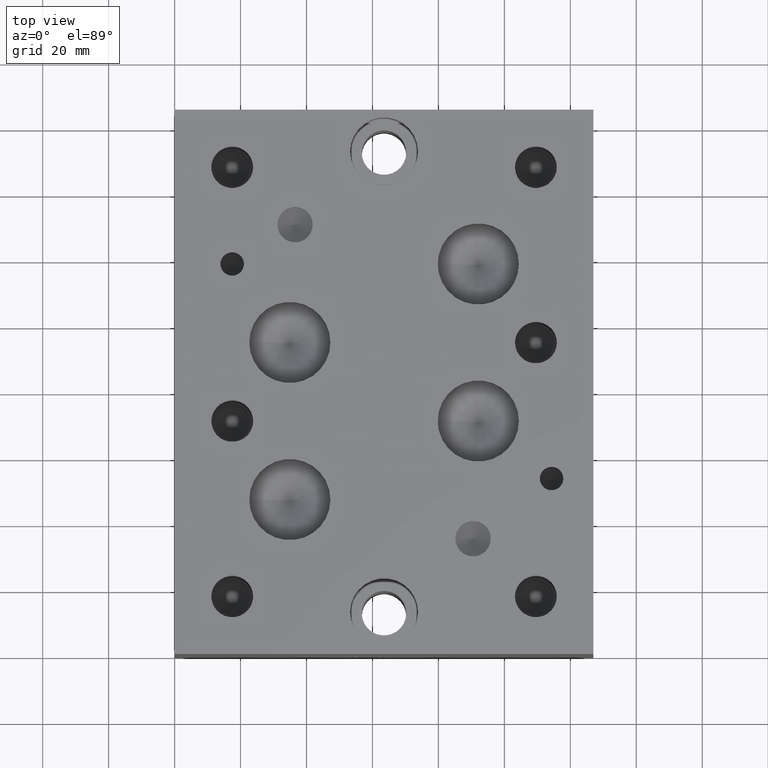
[diagram: clean part render]
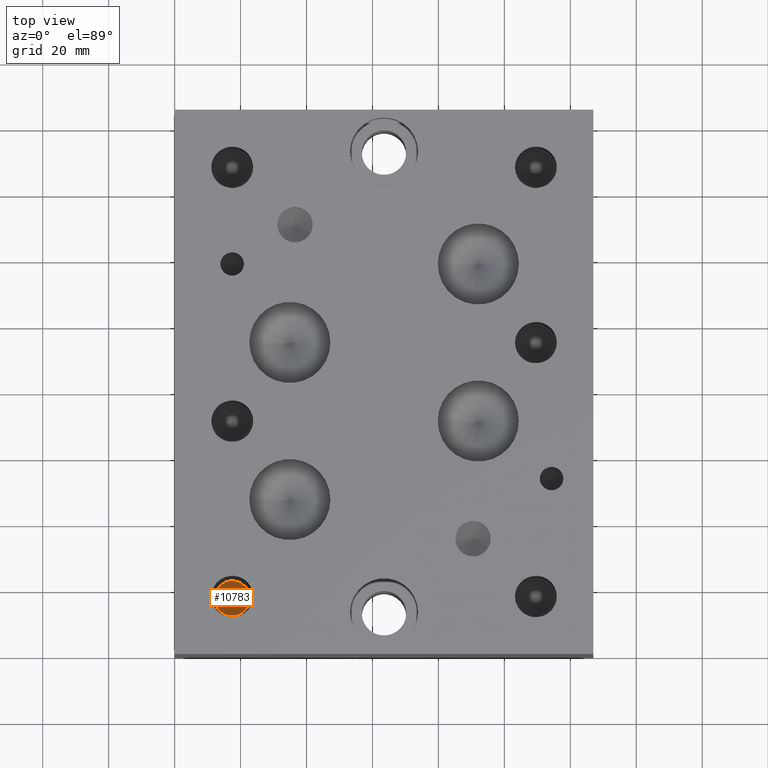
[diagram: same view with one face highlighted and labeled with its STEP entity id]
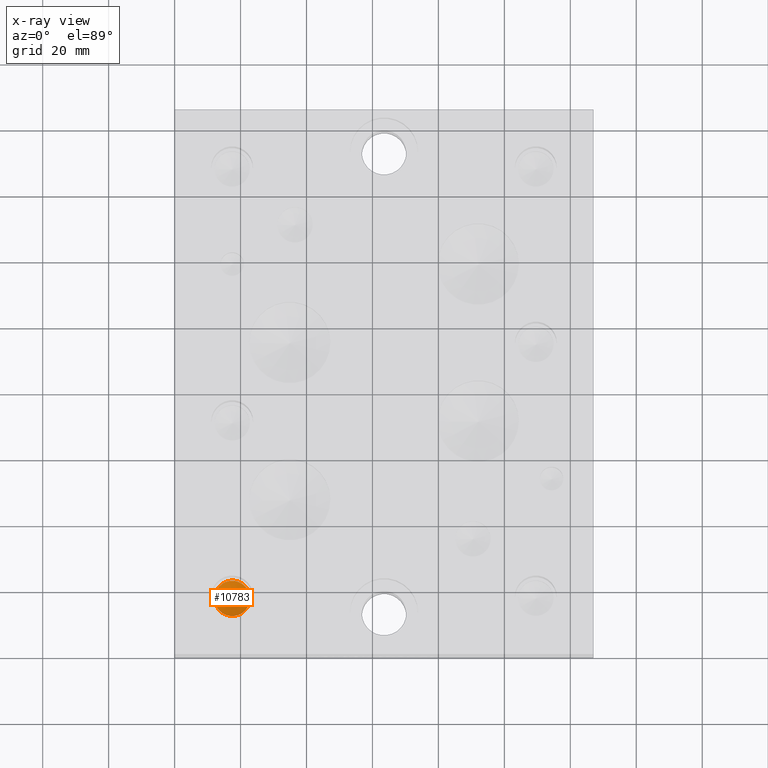
[diagram: x-ray of the same camera — body ghosted, the highlighted face saturated]
A machine part, top view. The second image highlights one B-rep face of the part: STEP entity #10783.
The next image is the same camera in x-ray: the body ghosted, the highlighted face saturated — about 0% of this face is hidden behind the body in this view.
In plain terms, the highlighted conical surface has half-angle 60 deg.
Its self-contained STEP definition (entity closure, byte-faithful):
#102=CONICAL_SURFACE('',#11344,2.6797,1.0471975511966);
#264=CIRCLE('',#11345,5.3594);
#265=CIRCLE('',#11346,5.3594);
#1395=FACE_OUTER_BOUND('',#2004,.T.);
#2004=EDGE_LOOP('',(#9385,#9386,#9387,#9388));
#3014=LINE('',#18626,#3993);
#3993=VECTOR('',#13418,2.6797);
#4988=VERTEX_POINT('',#18622);
#4989=VERTEX_POINT('',#18623);
#4990=VERTEX_POINT('',#18625);
#6476=EDGE_CURVE('',#4988,#4989,#264,.T.);
#6477=EDGE_CURVE('',#4989,#4990,#3014,.T.);
#6478=EDGE_CURVE('',#4989,#4988,#265,.T.);
#9385=ORIENTED_EDGE('',*,*,#6476,.T.);
#9386=ORIENTED_EDGE('',*,*,#6477,.T.);
#9387=ORIENTED_EDGE('',*,*,#6477,.F.);
#9388=ORIENTED_EDGE('',*,*,#6478,.T.);
#10783=ADVANCED_FACE('',(#1395),#102,.F.);
#11344=AXIS2_PLACEMENT_3D('',#18621,#13414,#13415);
#11345=AXIS2_PLACEMENT_3D('',#18624,#13416,#13417);
#11346=AXIS2_PLACEMENT_3D('',#18627,#13419,#13420);
#13414=DIRECTION('center_axis',(0.,0.,1.));
#13415=DIRECTION('ref_axis',(1.,0.,0.));
#13416=DIRECTION('center_axis',(0.,0.,1.));
#13417=DIRECTION('ref_axis',(1.,0.,0.));
#13418=DIRECTION('',(0.866025403784439,1.06057523872491E-16,-0.5));
#13419=DIRECTION('center_axis',(0.,0.,1.));
#13420=DIRECTION('ref_axis',(1.,0.,0.));
#18621=CARTESIAN_POINT('Origin',(17.4625,17.45742,39.6008744836526));
#18622=CARTESIAN_POINT('',(22.8219,17.45742,41.148));
#18623=CARTESIAN_POINT('',(12.1031,17.45742,41.148));
#18624=CARTESIAN_POINT('Origin',(17.4625,17.45742,41.148));
#18625=CARTESIAN_POINT('',(17.4625,17.45742,38.0537489673051));
#18626=CARTESIAN_POINT('',(14.7828,17.45742,39.6008744836526));
#18627=CARTESIAN_POINT('Origin',(17.4625,17.45742,41.148));